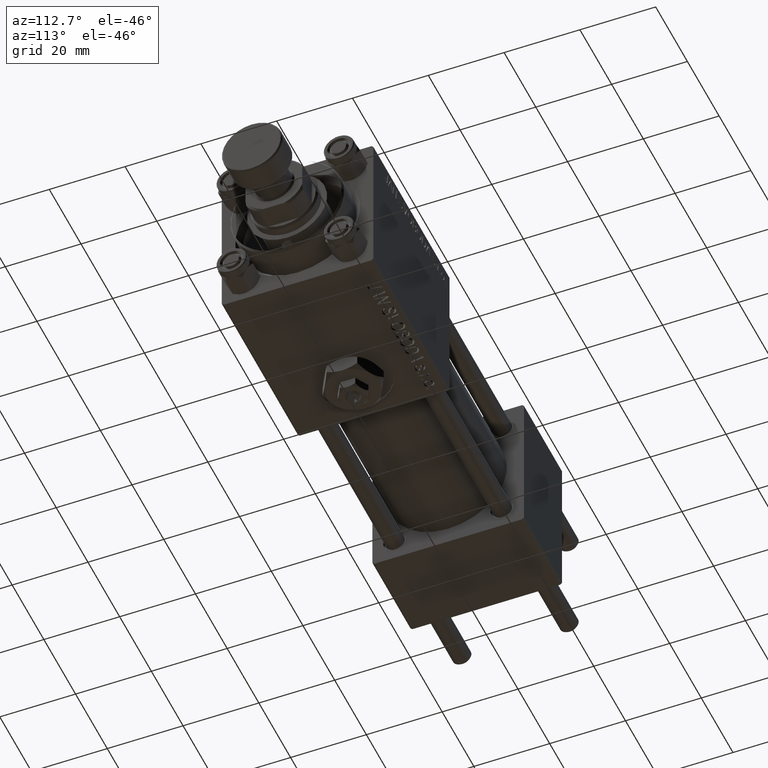
[diagram: clean part render]
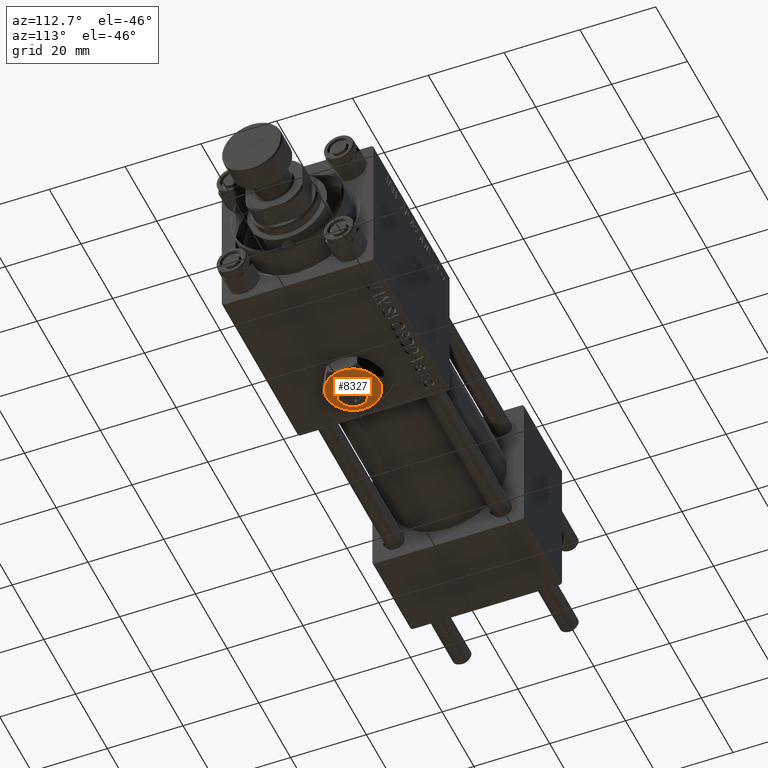
[diagram: same view with one face highlighted and labeled with its STEP entity id]
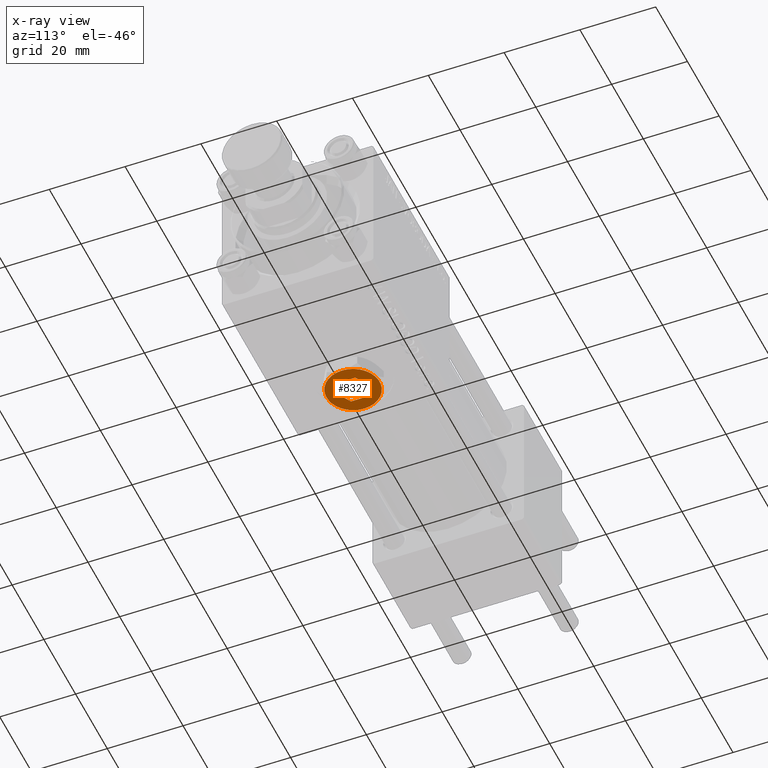
[diagram: x-ray of the same camera — body ghosted, the highlighted face saturated]
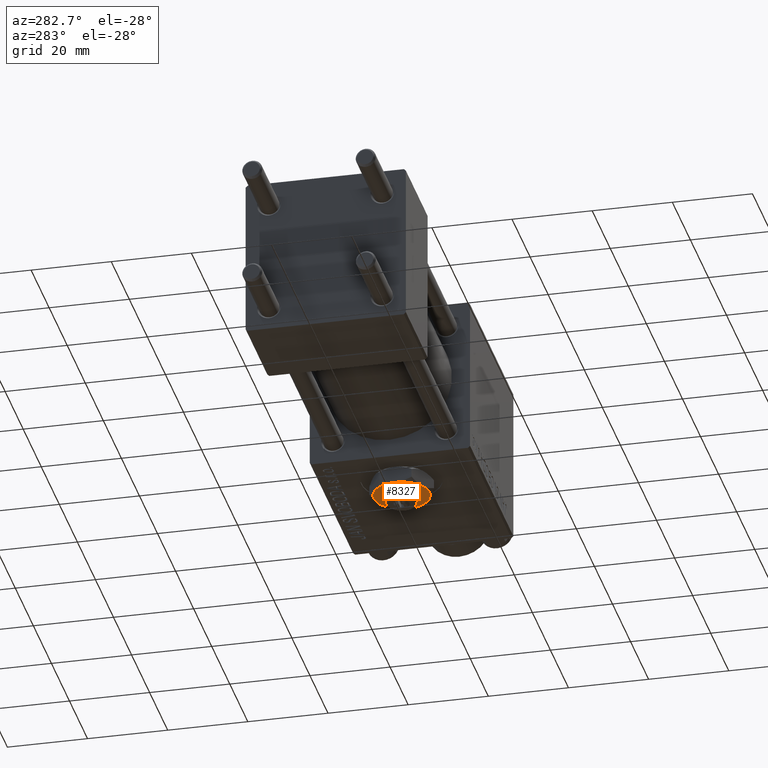
[diagram: same view with one face highlighted and labeled with its STEP entity id]
A machine part, auxiliary view. The second image highlights one B-rep face of the part: STEP entity #8327.
The next image is the same camera in x-ray: the body ghosted, the highlighted face saturated — about 0% of this face is hidden behind the body in this view.
A second angle (auxiliary view) of the same face is appended — the face is thin or edge-on in the first view.
In plain terms, the highlighted planar face has unit normal (0, 0, -1).
Its self-contained STEP definition (entity closure, byte-faithful):
#287 = CARTESIAN_POINT ( 'NONE',  ( 0.000000000000000000, 0.000000000000000000, 4.299999999999999822 ) ) ;
#750 = CARTESIAN_POINT ( 'NONE',  ( 0.000000000000000000, 0.000000000000000000, 4.299999999999999822 ) ) ;
#1258 = DIRECTION ( 'NONE',  ( 0.000000000000000000, 0.000000000000000000, 1.000000000000000000 ) ) ;
#2295 = EDGE_CURVE ( 'NONE', #49559, #31224, #32910, .T. ) ;
#2548 = CIRCLE ( 'NONE', #52063, 7.000000000000001776 ) ;
#2774 = ORIENTED_EDGE ( 'NONE', *, *, #10120, .T. ) ;
#3003 = CARTESIAN_POINT ( 'NONE',  ( 3.499999999999998224, 2.020725942163691613, 4.299999999999999822 ) ) ;
#3027 = FACE_BOUND ( 'NONE', #26829, .T. ) ;
#3707 = EDGE_CURVE ( 'NONE', #33591, #8505, #25273, .T. ) ;
#4491 = LINE ( 'NONE', #51593, #15982 ) ;
#5091 = CIRCLE ( 'NONE', #8415, 7.000000000000001776 ) ;
#6552 = AXIS2_PLACEMENT_3D ( 'NONE', #287, #8959, #44971 ) ;
#6684 = EDGE_CURVE ( 'NONE', #8505, #30486, #8501, .T. ) ;
#7692 = CARTESIAN_POINT ( 'NONE',  ( -3.499999999999998668, -2.020725942163689837, 4.299999999999999822 ) ) ;
#7851 = LINE ( 'NONE', #11532, #42677 ) ;
#8016 = DIRECTION ( 'NONE',  ( 1.000000000000000000, 0.000000000000000000, 0.000000000000000000 ) ) ;
#8327 = ADVANCED_FACE ( 'NONE', ( #23022, #3027 ), #19062, .T. ) ;
#8415 = AXIS2_PLACEMENT_3D ( 'NONE', #31315, #38951, #18969 ) ;
#8479 = VERTEX_POINT ( 'NONE', #42159 ) ;
#8501 = LINE ( 'NONE', #16633, #25469 ) ;
#8505 = VERTEX_POINT ( 'NONE', #7692 ) ;
#8959 = DIRECTION ( 'NONE',  ( 0.000000000000000000, 0.000000000000000000, 1.000000000000000000 ) ) ;
#8970 = CARTESIAN_POINT ( 'NONE',  ( -3.499999999999999112, 2.020725942163690725, 4.299999999999999822 ) ) ;
#9201 = CIRCLE ( 'NONE', #16738, 7.000000000000001776 ) ;
#9501 = CARTESIAN_POINT ( 'NONE',  ( 6.999999999999994671, 3.004629197474313724E-15, 4.299999999999999822 ) ) ;
#10120 = EDGE_CURVE ( 'NONE', #11230, #14243, #27285, .T. ) ;
#11230 = VERTEX_POINT ( 'NONE', #50347 ) ;
#11532 = CARTESIAN_POINT ( 'NONE',  ( 3.499999999999998224, 2.020725942163691613, 4.299999999999999822 ) ) ;
#12378 = CIRCLE ( 'NONE', #6552, 7.000000000000001776 ) ;
#12791 = ORIENTED_EDGE ( 'NONE', *, *, #25223, .T. ) ;
#12944 = DIRECTION ( 'NONE',  ( -3.219245568722483357E-16, 1.000000000000000000, 0.000000000000000000 ) ) ;
#14243 = VERTEX_POINT ( 'NONE', #34788 ) ;
#15134 = DIRECTION ( 'NONE',  ( 0.000000000000000000, 0.000000000000000000, 1.000000000000000000 ) ) ;
#15982 = VECTOR ( 'NONE', #44713, 1000.000000000000114 ) ;
#16410 = ORIENTED_EDGE ( 'NONE', *, *, #28081, .T. ) ;
#16633 = CARTESIAN_POINT ( 'NONE',  ( -3.499999999999998668, -2.020725942163689837, 4.299999999999999822 ) ) ;
#16738 = AXIS2_PLACEMENT_3D ( 'NONE', #750, #36769, #25214 ) ;
#17300 = DIRECTION ( 'NONE',  ( 1.000000000000000000, 0.000000000000000000, 0.000000000000000000 ) ) ;
#18969 = DIRECTION ( 'NONE',  ( 1.000000000000000000, 0.000000000000000000, 0.000000000000000000 ) ) ;
#19062 = PLANE ( 'NONE',  #50722 ) ;
#19119 = CARTESIAN_POINT ( 'NONE',  ( 0.000000000000000000, 4.041451884327380562, 4.299999999999999822 ) ) ;
#20840 = DIRECTION ( 'NONE',  ( 0.8660254037844385966, -0.4999999999999998890, 0.000000000000000000 ) ) ;
#21199 = ORIENTED_EDGE ( 'NONE', *, *, #2295, .F. ) ;
#23022 = FACE_OUTER_BOUND ( 'NONE', #26044, .T. ) ;
#23273 = CARTESIAN_POINT ( 'NONE',  ( 0.000000000000000000, 0.000000000000000000, 4.299999999999999822 ) ) ;
#24377 = CIRCLE ( 'NONE', #29429, 7.000000000000001776 ) ;
#24873 = VERTEX_POINT ( 'NONE', #9501 ) ;
#25009 = DIRECTION ( 'NONE',  ( 1.073081856240828196E-16, -1.000000000000000000, 0.000000000000000000 ) ) ;
#25214 = DIRECTION ( 'NONE',  ( 1.000000000000000000, 0.000000000000000000, 0.000000000000000000 ) ) ;
#25223 = EDGE_CURVE ( 'NONE', #8479, #11230, #9201, .T. ) ;
#25273 = LINE ( 'NONE', #8970, #40261 ) ;
#25300 = CARTESIAN_POINT ( 'NONE',  ( 3.499999999999999556, -2.020725942163690281, 4.299999999999999822 ) ) ;
#25469 = VECTOR ( 'NONE', #20840, 1000.000000000000227 ) ;
#26044 = EDGE_LOOP ( 'NONE', ( #51683, #16410, #33422, #48217, #12791, #2774 ) ) ;
#26500 = EDGE_CURVE ( 'NONE', #37545, #34961, #2548, .T. ) ;
#26514 = ORIENTED_EDGE ( 'NONE', *, *, #38180, .F. ) ;
#26829 = EDGE_LOOP ( 'NONE', ( #26514, #50321, #21199, #39498, #31442, #41037 ) ) ;
#27219 = DIRECTION ( 'NONE',  ( 1.000000000000000000, 0.000000000000000000, -0.000000000000000000 ) ) ;
#27285 = CIRCLE ( 'NONE', #49953, 7.000000000000001776 ) ;
#27564 = CARTESIAN_POINT ( 'NONE',  ( -3.500000000000000888, 6.062177826491073063, 4.299999999999999822 ) ) ;
#27568 = DIRECTION ( 'NONE',  ( -0.8660254037844387076, 0.4999999999999998335, 0.000000000000000000 ) ) ;
#27613 = EDGE_CURVE ( 'NONE', #34961, #8479, #24377, .T. ) ;
#28081 = EDGE_CURVE ( 'NONE', #24873, #37545, #5091, .T. ) ;
#29364 = CARTESIAN_POINT ( 'NONE',  ( -3.499999999999999112, 2.020725942163690725, 4.299999999999999822 ) ) ;
#29429 = AXIS2_PLACEMENT_3D ( 'NONE', #36123, #51929, #47203 ) ;
#30486 = VERTEX_POINT ( 'NONE', #35406 ) ;
#31224 = VERTEX_POINT ( 'NONE', #3003 ) ;
#31315 = CARTESIAN_POINT ( 'NONE',  ( 0.000000000000000000, 0.000000000000000000, 4.299999999999999822 ) ) ;
#31442 = ORIENTED_EDGE ( 'NONE', *, *, #6684, .F. ) ;
#32141 = CARTESIAN_POINT ( 'NONE',  ( 3.500000000000000000, -2.020725942163690281, 4.299999999999999822 ) ) ;
#32660 = CARTESIAN_POINT ( 'NONE',  ( 3.500000000000000444, 6.062177826491073063, 4.299999999999999822 ) ) ;
#32910 = LINE ( 'NONE', #25300, #40215 ) ;
#33422 = ORIENTED_EDGE ( 'NONE', *, *, #26500, .T. ) ;
#33591 = VERTEX_POINT ( 'NONE', #29364 ) ;
#33975 = VERTEX_POINT ( 'NONE', #51690 ) ;
#34106 = LINE ( 'NONE', #19119, #47630 ) ;
#34788 = CARTESIAN_POINT ( 'NONE',  ( 3.500000000000000888, -6.062177826491073951, 4.299999999999999822 ) ) ;
#34961 = VERTEX_POINT ( 'NONE', #27564 ) ;
#35406 = CARTESIAN_POINT ( 'NONE',  ( -2.443687887572056883E-16, -4.041451884327378785, 4.299999999999999822 ) ) ;
#36123 = CARTESIAN_POINT ( 'NONE',  ( 0.000000000000000000, 0.000000000000000000, 4.299999999999999822 ) ) ;
#36769 = DIRECTION ( 'NONE',  ( 0.000000000000000000, 0.000000000000000000, 1.000000000000000000 ) ) ;
#37545 = VERTEX_POINT ( 'NONE', #32660 ) ;
#37616 = DIRECTION ( 'NONE',  ( 0.000000000000000000, 0.000000000000000000, 1.000000000000000000 ) ) ;
#38180 = EDGE_CURVE ( 'NONE', #33975, #33591, #34106, .T. ) ;
#38837 = EDGE_CURVE ( 'NONE', #14243, #24873, #12378, .T. ) ;
#38951 = DIRECTION ( 'NONE',  ( 0.000000000000000000, 0.000000000000000000, 1.000000000000000000 ) ) ;
#39498 = ORIENTED_EDGE ( 'NONE', *, *, #45173, .F. ) ;
#39760 = EDGE_CURVE ( 'NONE', #31224, #33975, #7851, .T. ) ;
#40215 = VECTOR ( 'NONE', #12944, 1000.000000000000000 ) ;
#40261 = VECTOR ( 'NONE', #25009, 1000.000000000000000 ) ;
#41037 = ORIENTED_EDGE ( 'NONE', *, *, #3707, .F. ) ;
#41223 = CARTESIAN_POINT ( 'NONE',  ( 0.000000000000000000, 0.000000000000000000, 4.299999999999999822 ) ) ;
#42159 = CARTESIAN_POINT ( 'NONE',  ( -7.000000000000001776, -2.253471898105739040E-15, 4.299999999999999822 ) ) ;
#42677 = VECTOR ( 'NONE', #27568, 1000.000000000000114 ) ;
#44030 = CARTESIAN_POINT ( 'NONE',  ( 0.000000000000000000, 0.000000000000000000, 4.299999999999999822 ) ) ;
#44713 = DIRECTION ( 'NONE',  ( 0.8660254037844388186, 0.4999999999999996669, 0.000000000000000000 ) ) ;
#44971 = DIRECTION ( 'NONE',  ( 1.000000000000000000, 0.000000000000000000, 0.000000000000000000 ) ) ;
#45173 = EDGE_CURVE ( 'NONE', #30486, #49559, #4491, .T. ) ;
#46493 = DIRECTION ( 'NONE',  ( -0.8660254037844385966, -0.4999999999999998890, 0.000000000000000000 ) ) ;
#47203 = DIRECTION ( 'NONE',  ( 1.000000000000000000, 0.000000000000000000, 0.000000000000000000 ) ) ;
#47630 = VECTOR ( 'NONE', #46493, 1000.000000000000227 ) ;
#48217 = ORIENTED_EDGE ( 'NONE', *, *, #27613, .T. ) ;
#49559 = VERTEX_POINT ( 'NONE', #32141 ) ;
#49953 = AXIS2_PLACEMENT_3D ( 'NONE', #44030, #37616, #8016 ) ;
#50321 = ORIENTED_EDGE ( 'NONE', *, *, #39760, .F. ) ;
#50347 = CARTESIAN_POINT ( 'NONE',  ( -3.500000000000000000, -6.062177826491073063, 4.299999999999999822 ) ) ;
#50722 = AXIS2_PLACEMENT_3D ( 'NONE', #23273, #15134, #27219 ) ;
#51593 = CARTESIAN_POINT ( 'NONE',  ( -2.443687887572056883E-16, -4.041451884327378785, 4.299999999999999822 ) ) ;
#51683 = ORIENTED_EDGE ( 'NONE', *, *, #38837, .T. ) ;
#51690 = CARTESIAN_POINT ( 'NONE',  ( 0.000000000000000000, 4.041451884327380562, 4.299999999999999822 ) ) ;
#51929 = DIRECTION ( 'NONE',  ( 0.000000000000000000, 0.000000000000000000, 1.000000000000000000 ) ) ;
#52063 = AXIS2_PLACEMENT_3D ( 'NONE', #41223, #1258, #17300 ) ;